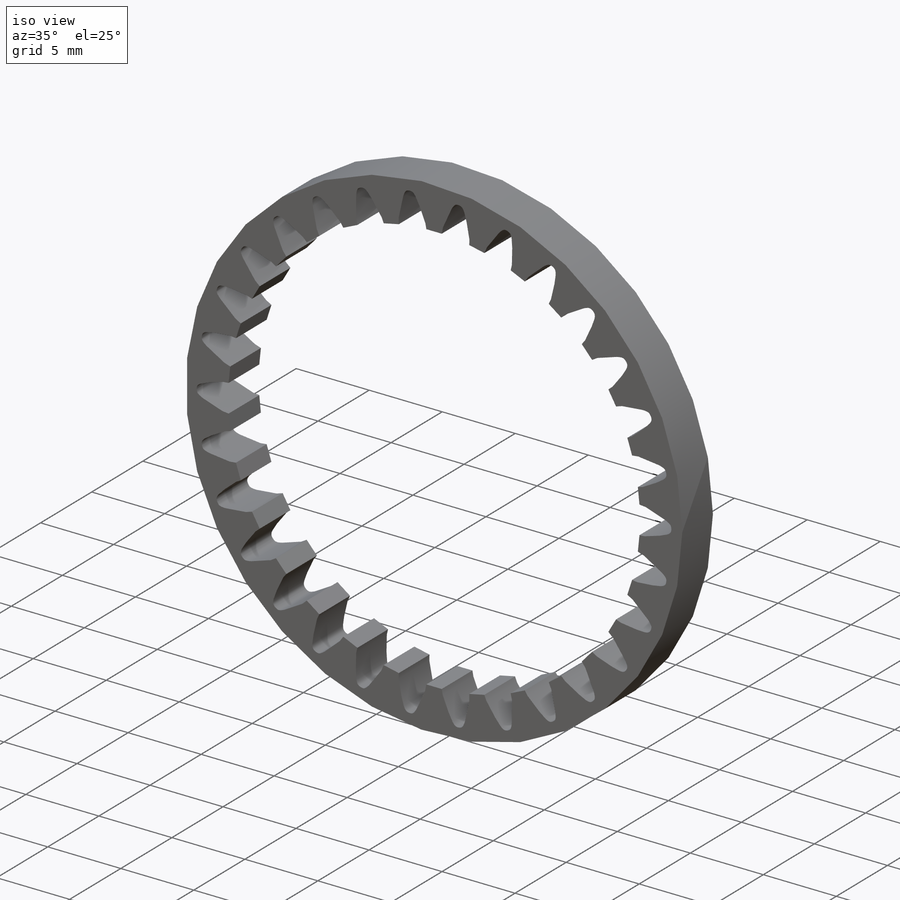
[diagram: iso view]
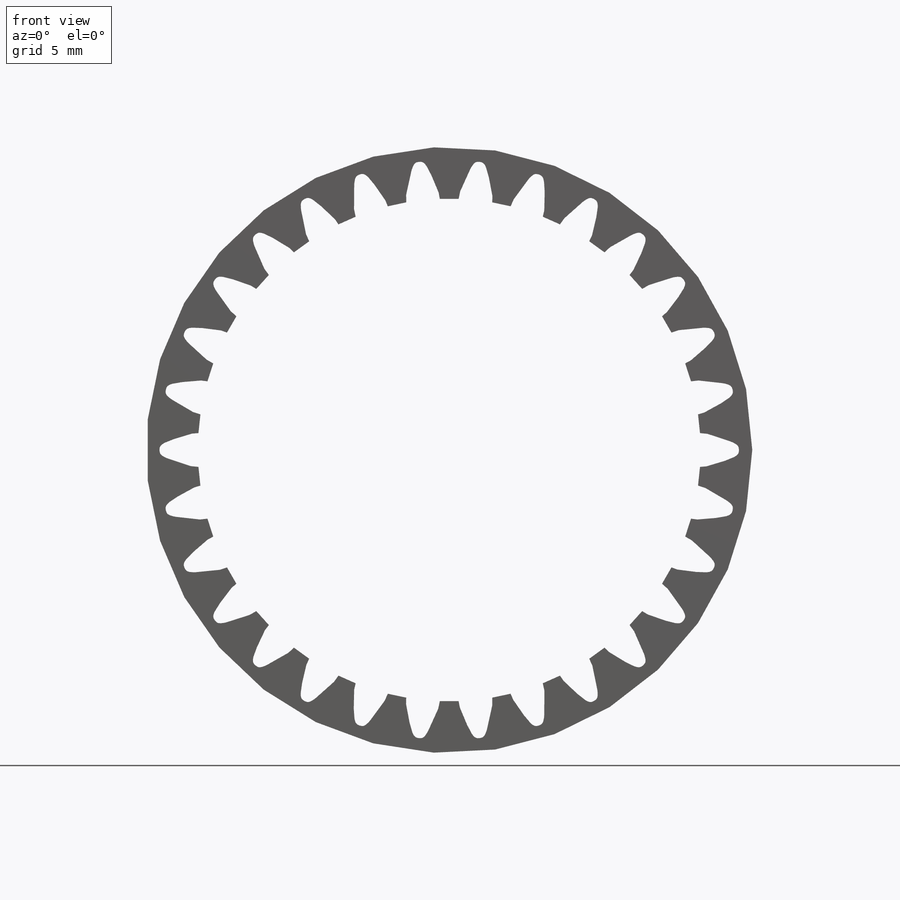
[diagram: front view]
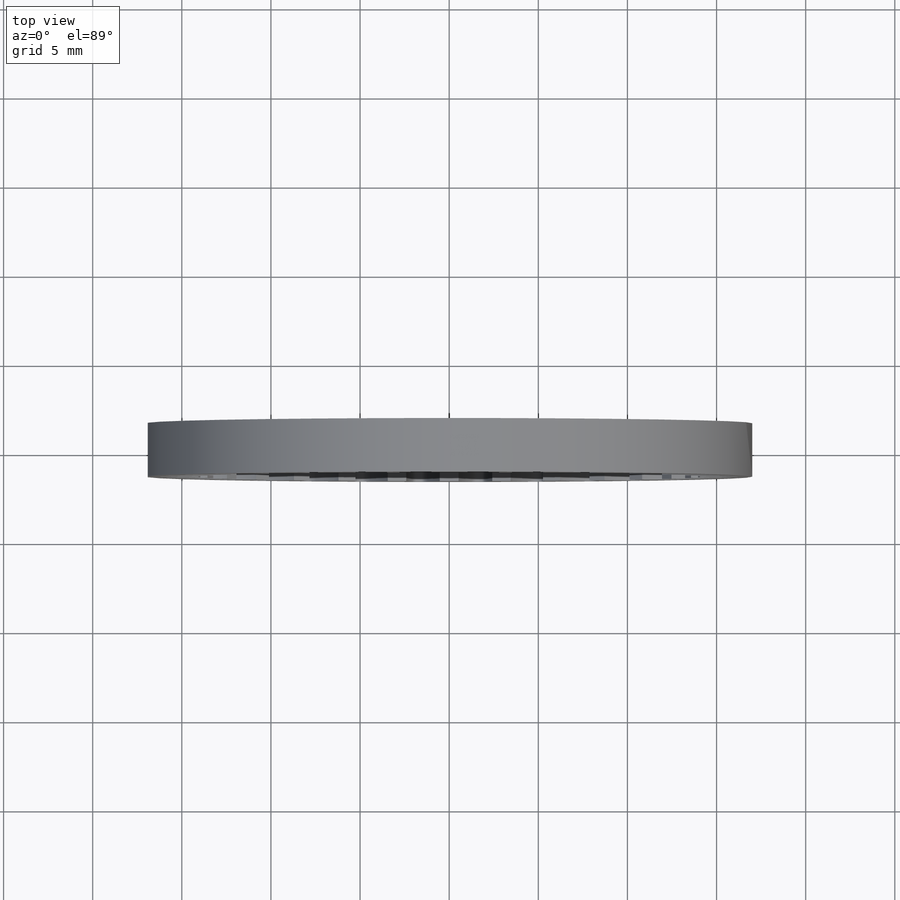
[diagram: top view]
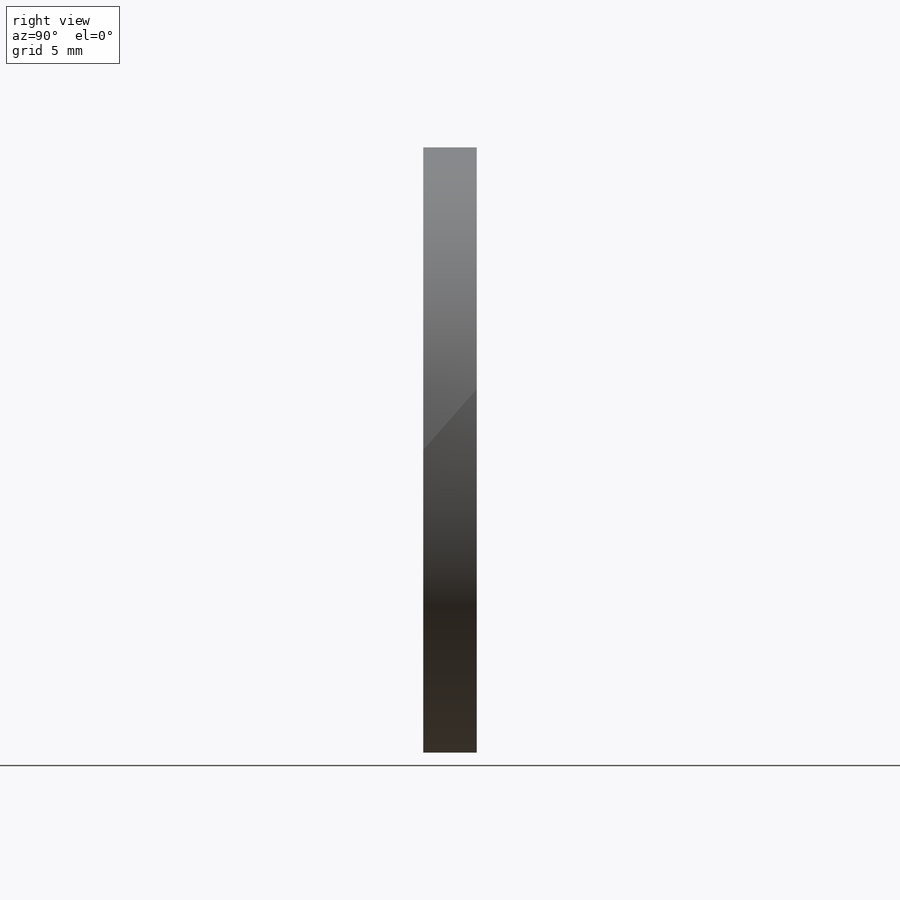
[diagram: right view]
SOLIDWORKS PART (.sldprt)
format: sldprt  version: not decoded by parser v0  size: 254,464 bytes
history: native  units: mm
features: sketch x3, material x1, revolve x1, cut_extrude x1, pattern_circular x1 (+11 scaffold rows collapsed)
feature tree (18):
  scaffold x11  (default folders/planes/origin — collapsed)
  material  "Matériau <non spécifié>"
  sketch  "SketchRevolveRing_Gear_Fixed01"  dims[Side1=1.5mm OutsideRadius=17.0mm Side2=1.5mm MinorDiameter=14.1mm]
  revolve  "Ring_Gear_Fixed01"  Angle=360deg
  sketch  "SketchToothRing_Gear_Fixed01"
  cut_extrude  "ToothExtrudeCutRing_Gear_Fixed01"  Depth=2.5mm
  pattern_circular  "PatternRing_Gear_Fixed01"  Count=30  [1 undecoded]
  sketch  "AuxiliarySketchRing_Gear_Fixed01"  dims[PitchDiameter=30.0mm BaseDiameter=~28.190778mm MajorDiameter=32.5mm MinorDiameter=28.0mm]
decode coverage: 5 of 6 modeling features carry decoded parameters
note: ~ marks probable driven/reference dimensions
note: 1 parameter value undecoded
note: suppression state not decoded; provenance and decode notes live in map.json
